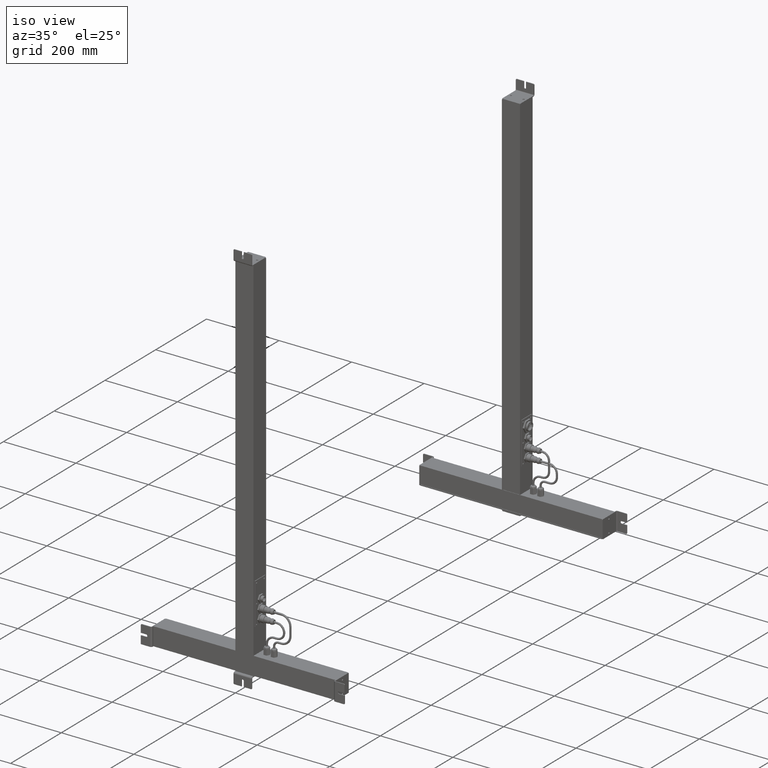
[diagram: clean part render]
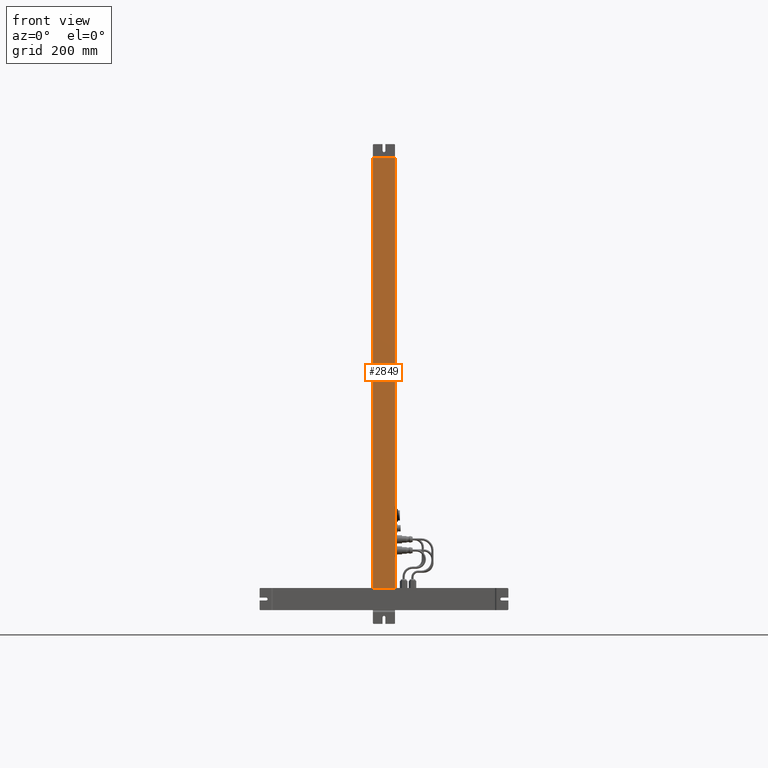
[diagram: tour spotlight — one face highlighted and labeled with its STEP entity id]
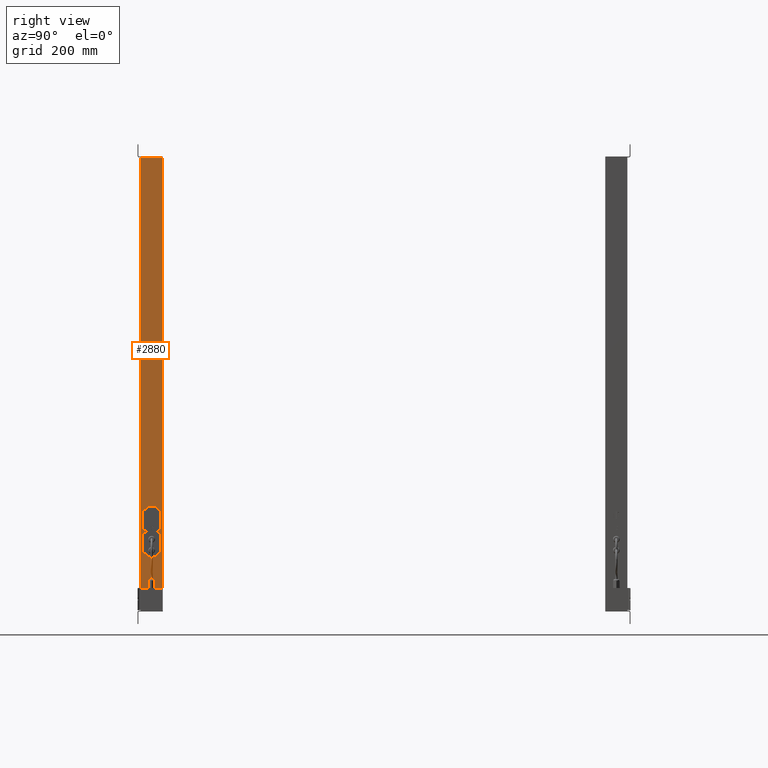
[diagram: tour spotlight — one face highlighted and labeled with its STEP entity id]
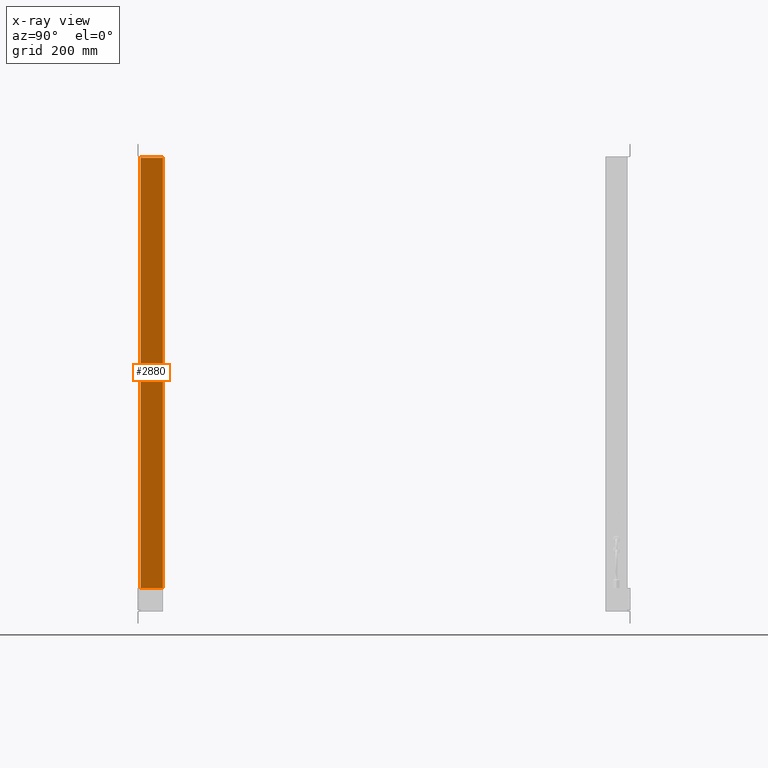
[diagram: x-ray of the same camera — body ghosted, this tour face saturated]
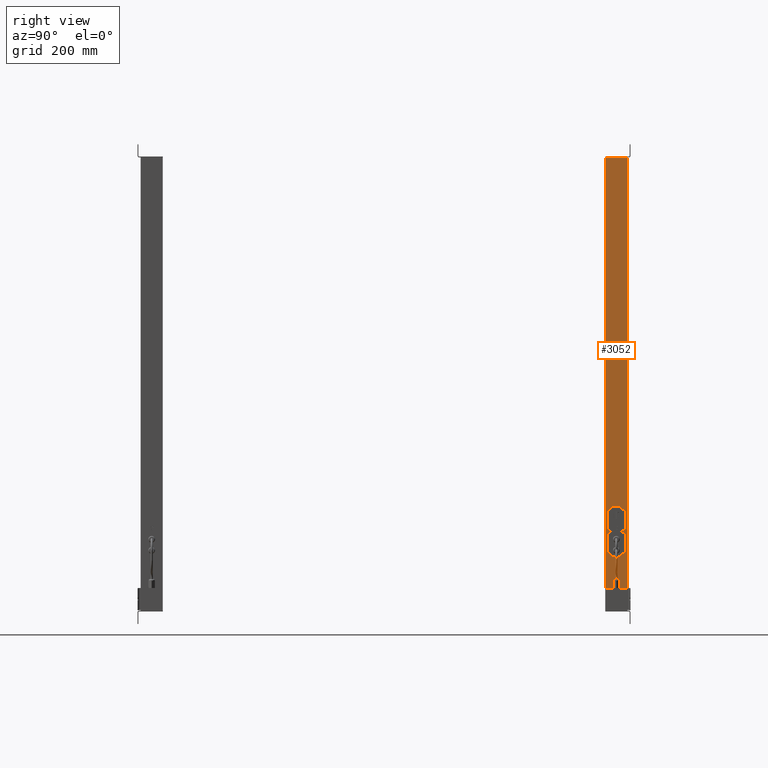
[diagram: tour spotlight — one face highlighted and labeled with its STEP entity id]
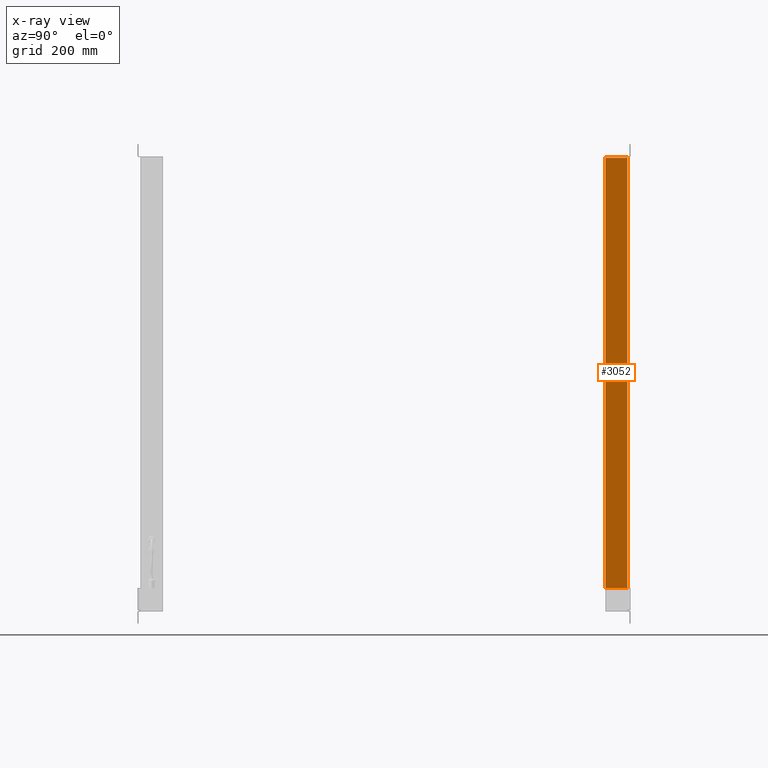
[diagram: x-ray of the same camera — body ghosted, this tour face saturated]
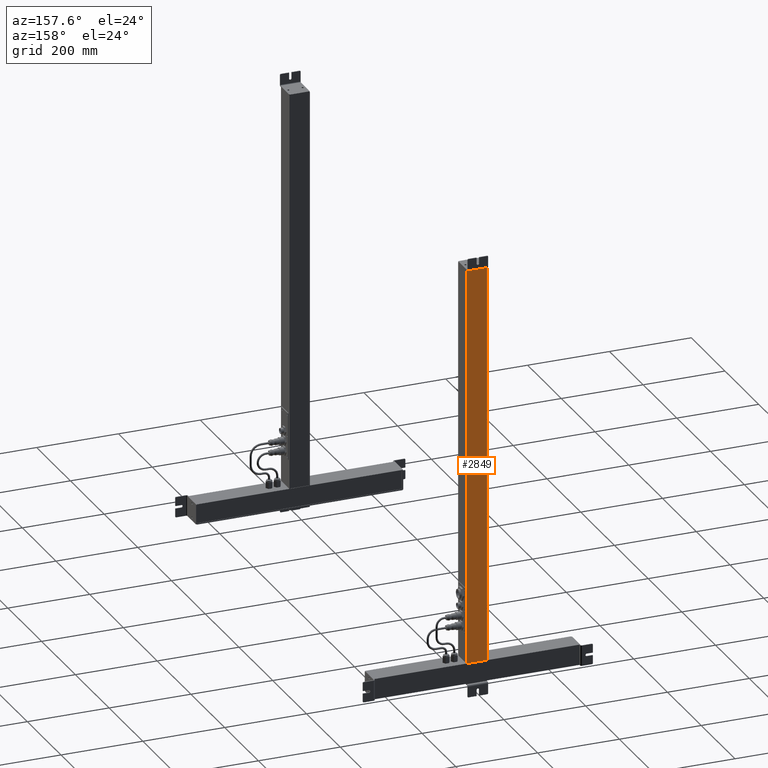
[diagram: tour spotlight — one face highlighted and labeled with its STEP entity id]
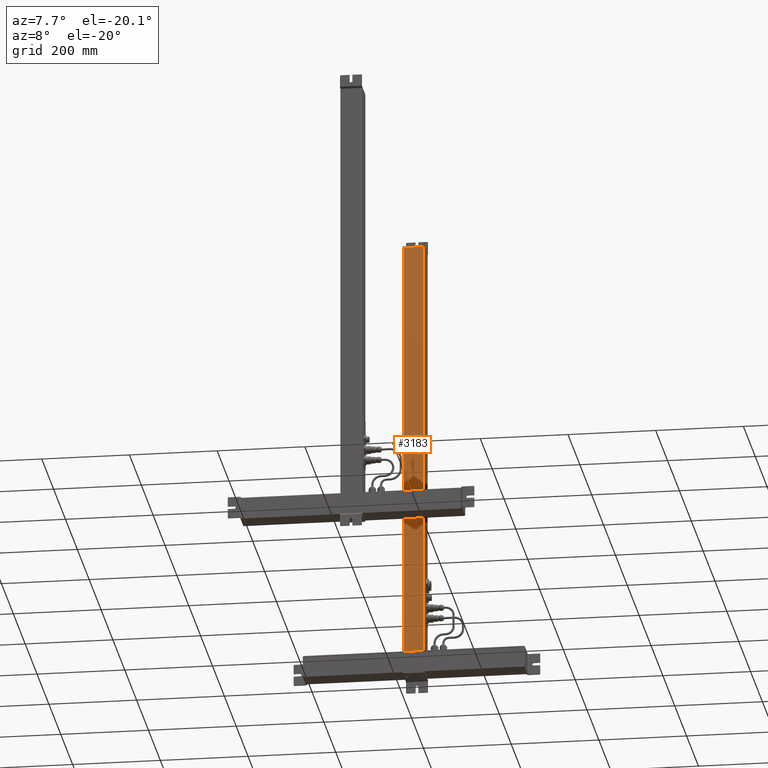
[diagram: tour spotlight — one face highlighted and labeled with its STEP entity id]
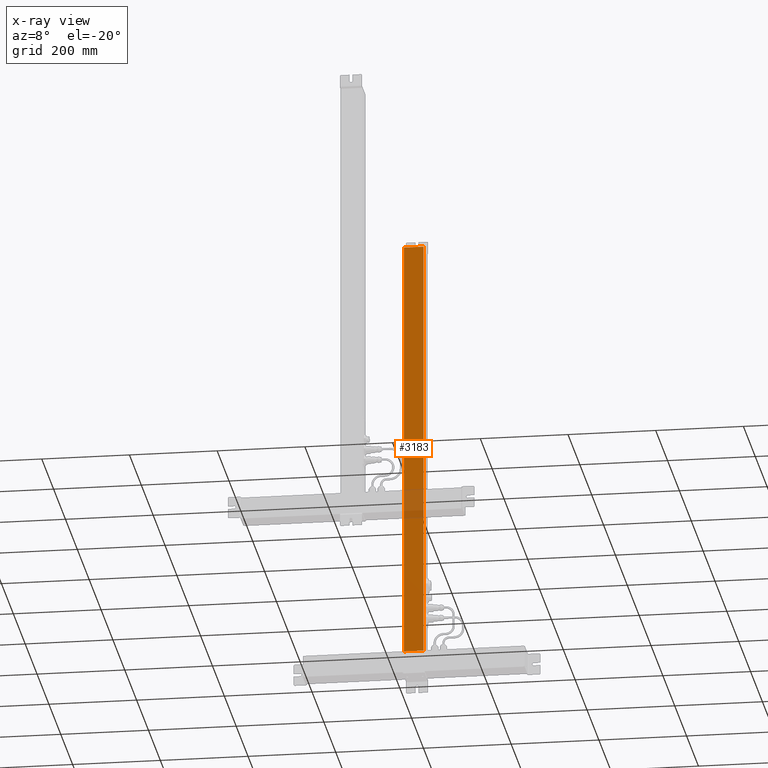
[diagram: x-ray of the same camera — body ghosted, this tour face saturated]
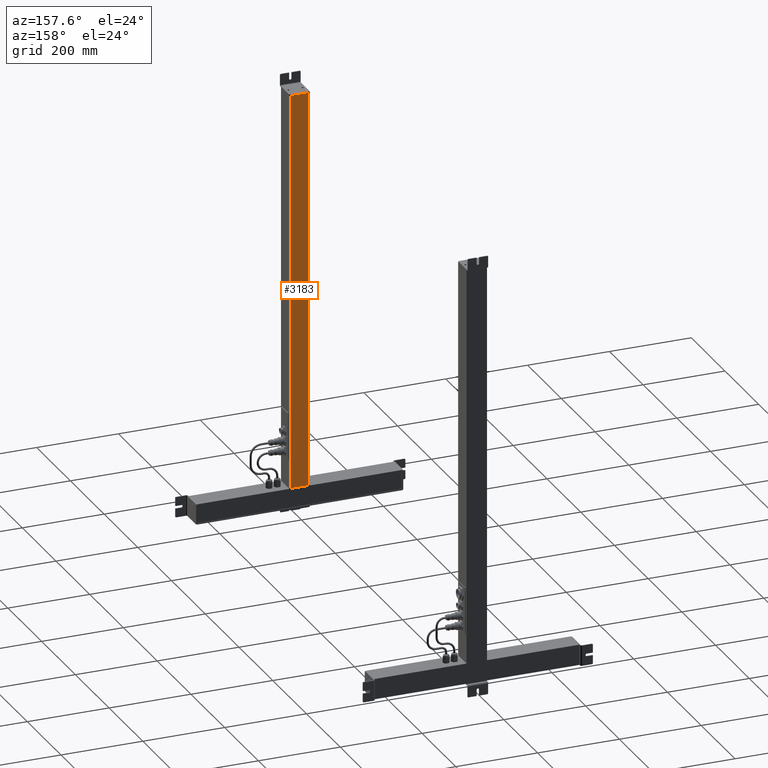
[diagram: tour spotlight — one face highlighted and labeled with its STEP entity id]
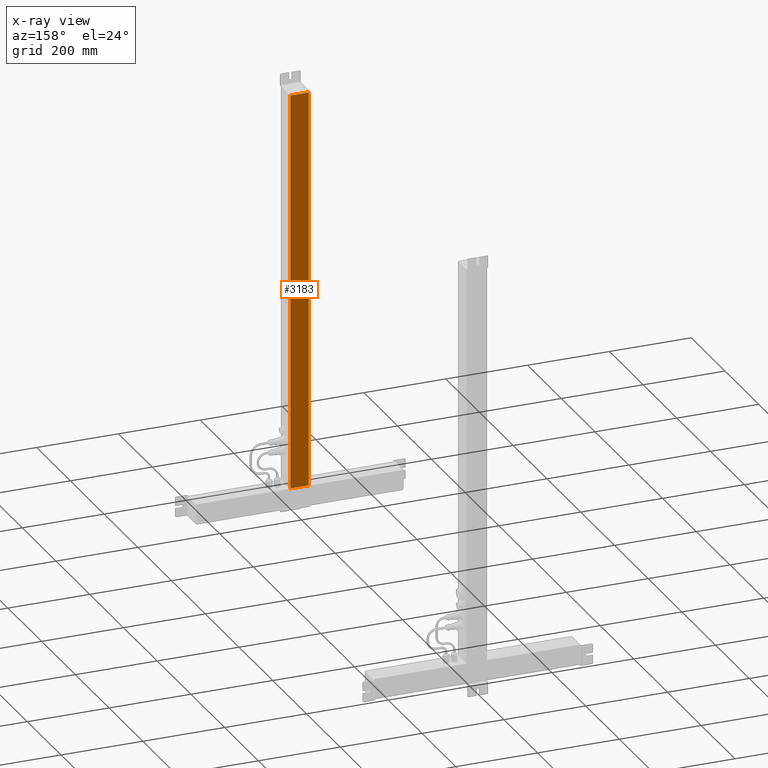
[diagram: x-ray of the same camera — body ghosted, this tour face saturated]
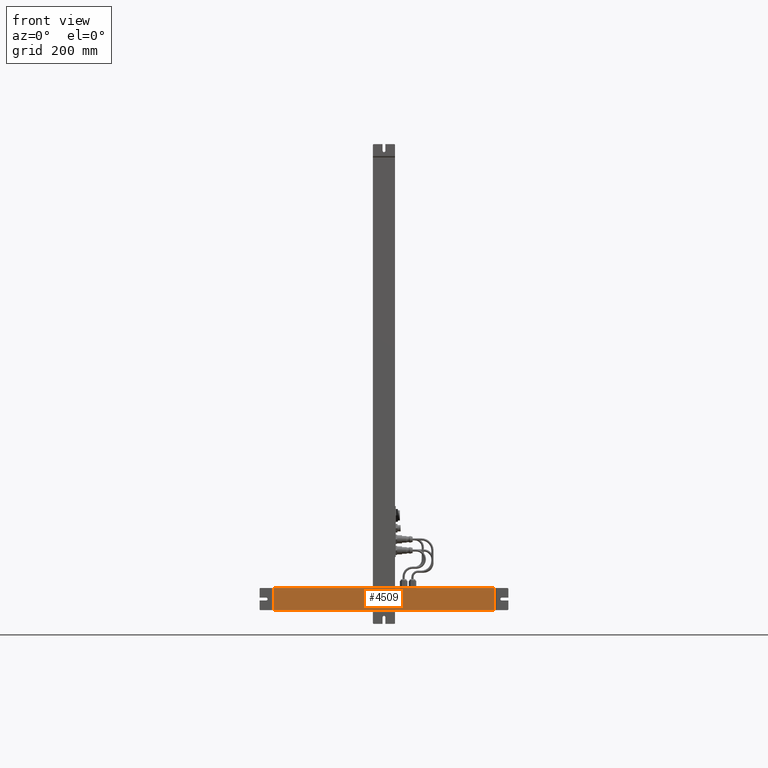
[diagram: tour spotlight — one face highlighted and labeled with its STEP entity id]
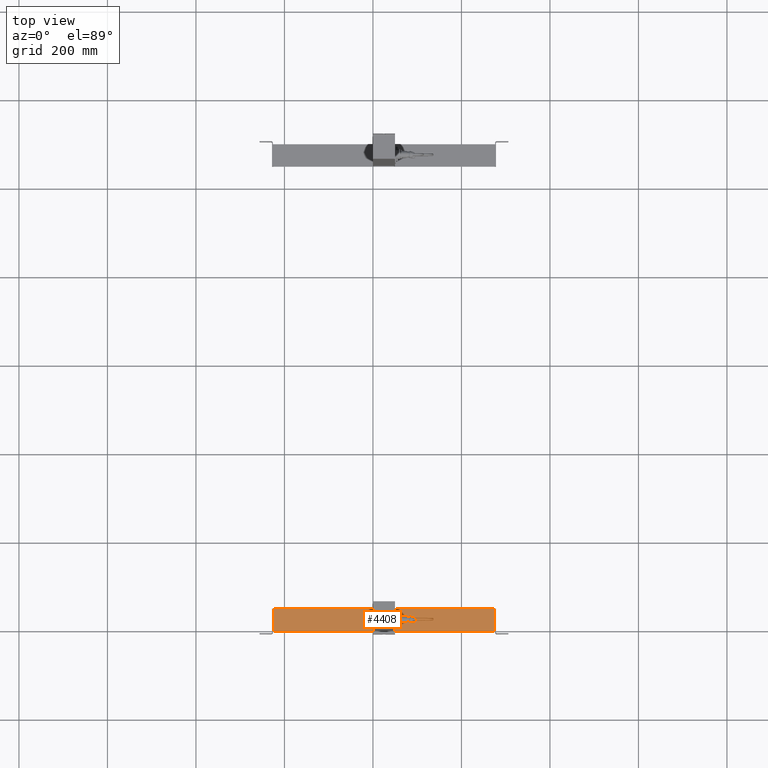
[diagram: tour spotlight — one face highlighted and labeled with its STEP entity id]
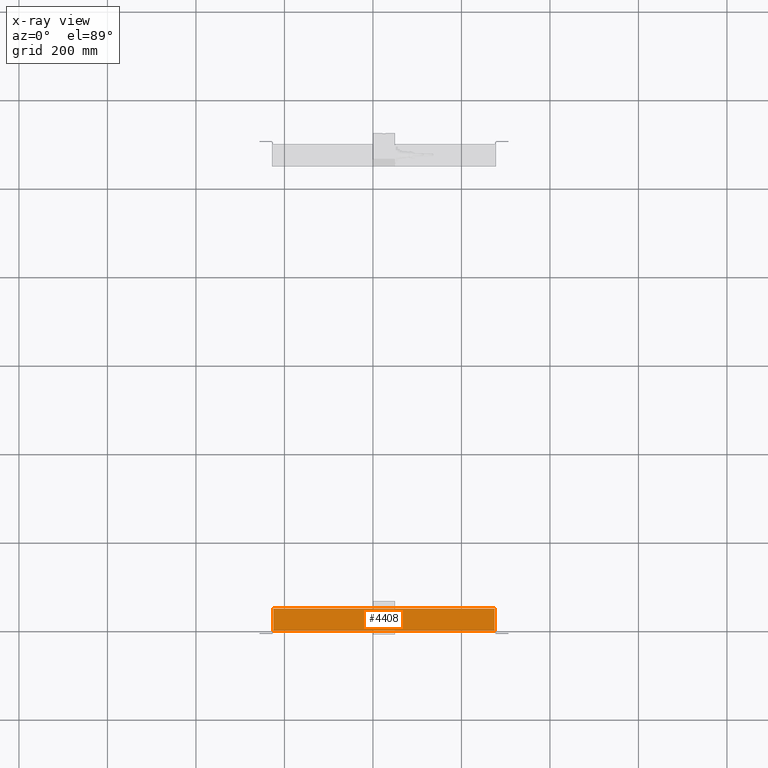
[diagram: x-ray of the same camera — body ghosted, this tour face saturated]
A machine part: a face-by-face anatomy tour. The part has 767 B-rep faces; the first image is the clean iso view, then the 8 largest visible faces are spotlighted one at a time (largest first), each with its STEP entity span.

Face 1 — front view, entity #2849. In plain terms, the highlighted planar face has unit normal (0, -1, 0).
Definition (entity closure, byte-faithful):
#2810=CARTESIAN_POINT('Axis2P3D Location',(0.,0.,0.)) ;
#2815=CARTESIAN_POINT('Line Origine',(0.,0.,486.)) ;
#2819=CARTESIAN_POINT('Vertex',(0.,0.,0.)) ;
#2821=CARTESIAN_POINT('Vertex',(0.,0.,972.)) ;
#2824=CARTESIAN_POINT('Line Origine',(25.,0.,0.)) ;
#2828=CARTESIAN_POINT('Vertex',(50.,0.,0.)) ;
#2831=CARTESIAN_POINT('Line Origine',(50.,0.,486.)) ;
#2835=CARTESIAN_POINT('Vertex',(50.,0.,972.)) ;
#2838=CARTESIAN_POINT('Line Origine',(25.,0.,972.)) ;
#2811=DIRECTION('Axis2P3D Direction',(0.,-1.,0.)) ;
#2812=DIRECTION('Axis2P3D XDirection',(1.,0.,0.)) ;
#2816=DIRECTION('Vector Direction',(0.,0.,1.)) ;
#2825=DIRECTION('Vector Direction',(1.,0.,0.)) ;
#2832=DIRECTION('Vector Direction',(0.,0.,1.)) ;
#2839=DIRECTION('Vector Direction',(1.,0.,0.)) ;
#2813=AXIS2_PLACEMENT_3D('Plane Axis2P3D',#2810,#2811,#2812) ;
#2844=ORIENTED_EDGE('',*,*,#2823,.F.) ;
#2845=ORIENTED_EDGE('',*,*,#2830,.T.) ;
#2846=ORIENTED_EDGE('',*,*,#2837,.T.) ;
#2847=ORIENTED_EDGE('',*,*,#2842,.F.) ;
#2817=VECTOR('Line Direction',#2816,1.) ;
#2826=VECTOR('Line Direction',#2825,1.) ;
#2833=VECTOR('Line Direction',#2832,1.) ;
#2840=VECTOR('Line Direction',#2839,1.) ;
#2849=ADVANCED_FACE('PartBody',(#2848),#2814,.T.) ;
#2823=EDGE_CURVE('',#2820,#2822,#2818,.T.) ;
#2830=EDGE_CURVE('',#2820,#2829,#2827,.T.) ;
#2837=EDGE_CURVE('',#2829,#2836,#2834,.T.) ;
#2842=EDGE_CURVE('',#2822,#2836,#2841,.T.) ;
#2843=EDGE_LOOP('',(#2844,#2845,#2846,#2847)) ;
#2848=FACE_OUTER_BOUND('',#2843,.T.) ;
#2818=LINE('Line',#2815,#2817) ;
#2827=LINE('Line',#2824,#2826) ;
#2834=LINE('Line',#2831,#2833) ;
#2841=LINE('Line',#2838,#2840) ;
#2814=PLANE('Plane',#2813) ;
#2820=VERTEX_POINT('',#2819) ;
#2822=VERTEX_POINT('',#2821) ;
#2829=VERTEX_POINT('',#2828) ;
#2836=VERTEX_POINT('',#2835) ;

Face 2 — right view, entity #2880. An x-ray twin of the same camera follows (body ghosted, this face saturated) — the face is partly hidden behind the body. In plain terms, the highlighted planar face has unit normal (1, 0, 0).
Definition (entity closure, byte-faithful):
#2828=CARTESIAN_POINT('Vertex',(50.,0.,0.)) ;
#2831=CARTESIAN_POINT('Line Origine',(50.,0.,486.)) ;
#2835=CARTESIAN_POINT('Vertex',(50.,0.,972.)) ;
#2850=CARTESIAN_POINT('Axis2P3D Location',(50.,2.90282621546E-015,0.)) ;
#2855=CARTESIAN_POINT('Line Origine',(50.,25.,0.)) ;
#2859=CARTESIAN_POINT('Vertex',(50.,50.,0.)) ;
#2862=CARTESIAN_POINT('Line Origine',(50.,50.,486.)) ;
#2866=CARTESIAN_POINT('Vertex',(50.,50.,972.)) ;
#2869=CARTESIAN_POINT('Line Origine',(50.,25.,972.)) ;
#2832=DIRECTION('Vector Direction',(0.,0.,1.)) ;
#2851=DIRECTION('Axis2P3D Direction',(1.,0.,0.)) ;
#2852=DIRECTION('Axis2P3D XDirection',(0.,1.,0.)) ;
#2856=DIRECTION('Vector Direction',(0.,1.,0.)) ;
#2863=DIRECTION('Vector Direction',(0.,0.,1.)) ;
#2870=DIRECTION('Vector Direction',(0.,1.,0.)) ;
#2853=AXIS2_PLACEMENT_3D('Plane Axis2P3D',#2850,#2851,#2852) ;
#2875=ORIENTED_EDGE('',*,*,#2837,.F.) ;
#2876=ORIENTED_EDGE('',*,*,#2861,.T.) ;
#2877=ORIENTED_EDGE('',*,*,#2868,.T.) ;
#2878=ORIENTED_EDGE('',*,*,#2873,.F.) ;
#2833=VECTOR('Line Direction',#2832,1.) ;
#2857=VECTOR('Line Direction',#2856,1.) ;
#2864=VECTOR('Line Direction',#2863,1.) ;
#2871=VECTOR('Line Direction',#2870,1.) ;
#2880=ADVANCED_FACE('PartBody',(#2879),#2854,.T.) ;
#2837=EDGE_CURVE('',#2829,#2836,#2834,.T.) ;
#2861=EDGE_CURVE('',#2829,#2860,#2858,.T.) ;
#2868=EDGE_CURVE('',#2860,#2867,#2865,.T.) ;
#2873=EDGE_CURVE('',#2836,#2867,#2872,.T.) ;
#2874=EDGE_LOOP('',(#2875,#2876,#2877,#2878)) ;
#2879=FACE_OUTER_BOUND('',#2874,.T.) ;
#2834=LINE('Line',#2831,#2833) ;
#2858=LINE('Line',#2855,#2857) ;
#2865=LINE('Line',#2862,#2864) ;
#2872=LINE('Line',#2869,#2871) ;
#2854=PLANE('Plane',#2853) ;
#2829=VERTEX_POINT('',#2828) ;
#2836=VERTEX_POINT('',#2835) ;
#2860=VERTEX_POINT('',#2859) ;
#2867=VERTEX_POINT('',#2866) ;

Face 3 — right view, entity #3052. An x-ray twin of the same camera follows (body ghosted, this face saturated) — the face is partly hidden behind the body. In plain terms, the highlighted planar face has unit normal (1, 0, 0).
Definition (entity closure, byte-faithful):
#2815=CARTESIAN_POINT('Line Origine',(0.,0.,486.)) ;
#2819=CARTESIAN_POINT('Vertex',(0.,0.,0.)) ;
#2821=CARTESIAN_POINT('Vertex',(0.,0.,972.)) ;
#3009=CARTESIAN_POINT('Vertex',(9.32587340685E-015,50.,0.)) ;
#3012=CARTESIAN_POINT('Line Origine',(7.1054273576E-015,50.,486.)) ;
#3016=CARTESIAN_POINT('Vertex',(9.32587340685E-015,50.,972.)) ;
#3031=CARTESIAN_POINT('Axis2P3D Location',(0.,50.,0.)) ;
#3036=CARTESIAN_POINT('Line Origine',(0.,25.,0.)) ;
#3041=CARTESIAN_POINT('Line Origine',(0.,25.,972.)) ;
#2816=DIRECTION('Vector Direction',(0.,0.,1.)) ;
#3013=DIRECTION('Vector Direction',(0.,0.,1.)) ;
#3032=DIRECTION('Axis2P3D Direction',(-1.,0.,0.)) ;
#3033=DIRECTION('Axis2P3D XDirection',(0.,-1.,0.)) ;
#3037=DIRECTION('Vector Direction',(0.,-1.,0.)) ;
#3042=DIRECTION('Vector Direction',(0.,-1.,0.)) ;
#3034=AXIS2_PLACEMENT_3D('Plane Axis2P3D',#3031,#3032,#3033) ;
#3047=ORIENTED_EDGE('',*,*,#3018,.F.) ;
#3048=ORIENTED_EDGE('',*,*,#3040,.T.) ;
#3049=ORIENTED_EDGE('',*,*,#2823,.T.) ;
#3050=ORIENTED_EDGE('',*,*,#3045,.F.) ;
#2817=VECTOR('Line Direction',#2816,1.) ;
#3014=VECTOR('Line Direction',#3013,1.) ;
#3038=VECTOR('Line Direction',#3037,1.) ;
#3043=VECTOR('Line Direction',#3042,1.) ;
#3052=ADVANCED_FACE('PartBody',(#3051),#3035,.T.) ;
#2823=EDGE_CURVE('',#2820,#2822,#2818,.T.) ;
#3018=EDGE_CURVE('',#3010,#3017,#3015,.T.) ;
#3040=EDGE_CURVE('',#3010,#2820,#3039,.T.) ;
#3045=EDGE_CURVE('',#3017,#2822,#3044,.T.) ;
#3046=EDGE_LOOP('',(#3047,#3048,#3049,#3050)) ;
#3051=FACE_OUTER_BOUND('',#3046,.T.) ;
#2818=LINE('Line',#2815,#2817) ;
#3015=LINE('Line',#3012,#3014) ;
#3039=LINE('Line',#3036,#3038) ;
#3044=LINE('Line',#3041,#3043) ;
#3035=PLANE('Plane',#3034) ;
#2820=VERTEX_POINT('',#2819) ;
#2822=VERTEX_POINT('',#2821) ;
#3010=VERTEX_POINT('',#3009) ;
#3017=VERTEX_POINT('',#3016) ;

Face 4 — auxiliary view, entity #2849. In plain terms, the highlighted planar face has unit normal (0, 1, 0).
Definition (entity closure, byte-faithful):
#2810=CARTESIAN_POINT('Axis2P3D Location',(0.,0.,0.)) ;
#2815=CARTESIAN_POINT('Line Origine',(0.,0.,486.)) ;
#2819=CARTESIAN_POINT('Vertex',(0.,0.,0.)) ;
#2821=CARTESIAN_POINT('Vertex',(0.,0.,972.)) ;
#2824=CARTESIAN_POINT('Line Origine',(25.,0.,0.)) ;
#2828=CARTESIAN_POINT('Vertex',(50.,0.,0.)) ;
#2831=CARTESIAN_POINT('Line Origine',(50.,0.,486.)) ;
#2835=CARTESIAN_POINT('Vertex',(50.,0.,972.)) ;
#2838=CARTESIAN_POINT('Line Origine',(25.,0.,972.)) ;
#2811=DIRECTION('Axis2P3D Direction',(0.,-1.,0.)) ;
#2812=DIRECTION('Axis2P3D XDirection',(1.,0.,0.)) ;
#2816=DIRECTION('Vector Direction',(0.,0.,1.)) ;
#2825=DIRECTION('Vector Direction',(1.,0.,0.)) ;
#2832=DIRECTION('Vector Direction',(0.,0.,1.)) ;
#2839=DIRECTION('Vector Direction',(1.,0.,0.)) ;
#2813=AXIS2_PLACEMENT_3D('Plane Axis2P3D',#2810,#2811,#2812) ;
#2844=ORIENTED_EDGE('',*,*,#2823,.F.) ;
#2845=ORIENTED_EDGE('',*,*,#2830,.T.) ;
#2846=ORIENTED_EDGE('',*,*,#2837,.T.) ;
#2847=ORIENTED_EDGE('',*,*,#2842,.F.) ;
#2817=VECTOR('Line Direction',#2816,1.) ;
#2826=VECTOR('Line Direction',#2825,1.) ;
#2833=VECTOR('Line Direction',#2832,1.) ;
#2840=VECTOR('Line Direction',#2839,1.) ;
#2849=ADVANCED_FACE('PartBody',(#2848),#2814,.T.) ;
#2823=EDGE_CURVE('',#2820,#2822,#2818,.T.) ;
#2830=EDGE_CURVE('',#2820,#2829,#2827,.T.) ;
#2837=EDGE_CURVE('',#2829,#2836,#2834,.T.) ;
#2842=EDGE_CURVE('',#2822,#2836,#2841,.T.) ;
#2843=EDGE_LOOP('',(#2844,#2845,#2846,#2847)) ;
#2848=FACE_OUTER_BOUND('',#2843,.T.) ;
#2818=LINE('Line',#2815,#2817) ;
#2827=LINE('Line',#2824,#2826) ;
#2834=LINE('Line',#2831,#2833) ;
#2841=LINE('Line',#2838,#2840) ;
#2814=PLANE('Plane',#2813) ;
#2820=VERTEX_POINT('',#2819) ;
#2822=VERTEX_POINT('',#2821) ;
#2829=VERTEX_POINT('',#2828) ;
#2836=VERTEX_POINT('',#2835) ;

Face 5 — auxiliary view, entity #3183. An x-ray twin of the same camera follows (body ghosted, this face saturated) — the face is partly hidden behind the body. In plain terms, the highlighted planar face has unit normal (0, -1, 0).
Definition (entity closure, byte-faithful):
#3100=CARTESIAN_POINT('Vertex',(2.5,49.,0.)) ;
#3103=CARTESIAN_POINT('Line Origine',(25.,49.,0.)) ;
#3107=CARTESIAN_POINT('Vertex',(47.5,49.,0.)) ;
#3140=CARTESIAN_POINT('Vertex',(2.5,49.,972.)) ;
#3143=CARTESIAN_POINT('Line Origine',(2.5,49.,486.)) ;
#3160=CARTESIAN_POINT('Axis2P3D Location',(47.5,49.,0.)) ;
#3165=CARTESIAN_POINT('Line Origine',(47.5,49.,486.)) ;
#3169=CARTESIAN_POINT('Vertex',(47.5,49.,972.)) ;
#3172=CARTESIAN_POINT('Line Origine',(25.,49.,972.)) ;
#3104=DIRECTION('Vector Direction',(-1.,0.,0.)) ;
#3144=DIRECTION('Vector Direction',(0.,0.,1.)) ;
#3161=DIRECTION('Axis2P3D Direction',(0.,1.,-0.)) ;
#3162=DIRECTION('Axis2P3D XDirection',(-1.,0.,0.)) ;
#3166=DIRECTION('Vector Direction',(0.,0.,1.)) ;
#3173=DIRECTION('Vector Direction',(-1.,0.,0.)) ;
#3163=AXIS2_PLACEMENT_3D('Plane Axis2P3D',#3160,#3161,#3162) ;
#3178=ORIENTED_EDGE('',*,*,#3171,.F.) ;
#3179=ORIENTED_EDGE('',*,*,#3109,.F.) ;
#3180=ORIENTED_EDGE('',*,*,#3147,.T.) ;
#3181=ORIENTED_EDGE('',*,*,#3176,.F.) ;
#3105=VECTOR('Line Direction',#3104,1.) ;
#3145=VECTOR('Line Direction',#3144,1.) ;
#3167=VECTOR('Line Direction',#3166,1.) ;
#3174=VECTOR('Line Direction',#3173,1.) ;
#3183=ADVANCED_FACE('Body.2',(#3182),#3164,.T.) ;
#3109=EDGE_CURVE('',#3101,#3108,#3106,.F.) ;
#3147=EDGE_CURVE('',#3101,#3141,#3146,.T.) ;
#3171=EDGE_CURVE('',#3108,#3170,#3168,.T.) ;
#3176=EDGE_CURVE('',#3170,#3141,#3175,.T.) ;
#3177=EDGE_LOOP('',(#3178,#3179,#3180,#3181)) ;
#3182=FACE_OUTER_BOUND('',#3177,.T.) ;
#3106=LINE('Line',#3103,#3105) ;
#3146=LINE('Line',#3143,#3145) ;
#3168=LINE('Line',#3165,#3167) ;
#3175=LINE('Line',#3172,#3174) ;
#3164=PLANE('Plane',#3163) ;
#3101=VERTEX_POINT('',#3100) ;
#3108=VERTEX_POINT('',#3107) ;
#3141=VERTEX_POINT('',#3140) ;
#3170=VERTEX_POINT('',#3169) ;

Face 6 — auxiliary view, entity #3183. An x-ray twin of the same camera follows (body ghosted, this face saturated) — the face is partly hidden behind the body. In plain terms, the highlighted planar face has unit normal (0, 1, 0).
Definition (entity closure, byte-faithful):
#3100=CARTESIAN_POINT('Vertex',(2.5,49.,0.)) ;
#3103=CARTESIAN_POINT('Line Origine',(25.,49.,0.)) ;
#3107=CARTESIAN_POINT('Vertex',(47.5,49.,0.)) ;
#3140=CARTESIAN_POINT('Vertex',(2.5,49.,972.)) ;
#3143=CARTESIAN_POINT('Line Origine',(2.5,49.,486.)) ;
#3160=CARTESIAN_POINT('Axis2P3D Location',(47.5,49.,0.)) ;
#3165=CARTESIAN_POINT('Line Origine',(47.5,49.,486.)) ;
#3169=CARTESIAN_POINT('Vertex',(47.5,49.,972.)) ;
#3172=CARTESIAN_POINT('Line Origine',(25.,49.,972.)) ;
#3104=DIRECTION('Vector Direction',(-1.,0.,0.)) ;
#3144=DIRECTION('Vector Direction',(0.,0.,1.)) ;
#3161=DIRECTION('Axis2P3D Direction',(0.,1.,-0.)) ;
#3162=DIRECTION('Axis2P3D XDirection',(-1.,0.,0.)) ;
#3166=DIRECTION('Vector Direction',(0.,0.,1.)) ;
#3173=DIRECTION('Vector Direction',(-1.,0.,0.)) ;
#3163=AXIS2_PLACEMENT_3D('Plane Axis2P3D',#3160,#3161,#3162) ;
#3178=ORIENTED_EDGE('',*,*,#3171,.F.) ;
#3179=ORIENTED_EDGE('',*,*,#3109,.F.) ;
#3180=ORIENTED_EDGE('',*,*,#3147,.T.) ;
#3181=ORIENTED_EDGE('',*,*,#3176,.F.) ;
#3105=VECTOR('Line Direction',#3104,1.) ;
#3145=VECTOR('Line Direction',#3144,1.) ;
#3167=VECTOR('Line Direction',#3166,1.) ;
#3174=VECTOR('Line Direction',#3173,1.) ;
#3183=ADVANCED_FACE('Body.2',(#3182),#3164,.T.) ;
#3109=EDGE_CURVE('',#3101,#3108,#3106,.F.) ;
#3147=EDGE_CURVE('',#3101,#3141,#3146,.T.) ;
#3171=EDGE_CURVE('',#3108,#3170,#3168,.T.) ;
#3176=EDGE_CURVE('',#3170,#3141,#3175,.T.) ;
#3177=EDGE_LOOP('',(#3178,#3179,#3180,#3181)) ;
#3182=FACE_OUTER_BOUND('',#3177,.T.) ;
#3106=LINE('Line',#3103,#3105) ;
#3146=LINE('Line',#3143,#3145) ;
#3168=LINE('Line',#3165,#3167) ;
#3175=LINE('Line',#3172,#3174) ;
#3164=PLANE('Plane',#3163) ;
#3101=VERTEX_POINT('',#3100) ;
#3108=VERTEX_POINT('',#3107) ;
#3141=VERTEX_POINT('',#3140) ;
#3170=VERTEX_POINT('',#3169) ;

Face 7 — front view, entity #4509. In plain terms, the highlighted planar face has unit normal (0, -1, 0).
Definition (entity closure, byte-faithful):
#4047=CARTESIAN_POINT('Line Origine',(50.,2.90282621546E-015,250.)) ;
#4051=CARTESIAN_POINT('Vertex',(50.,0.,0.)) ;
#4053=CARTESIAN_POINT('Vertex',(50.,0.,500.)) ;
#4177=CARTESIAN_POINT('Vertex',(0.,0.,0.)) ;
#4204=CARTESIAN_POINT('Line Origine',(25.,0.,0.)) ;
#4382=CARTESIAN_POINT('Line Origine',(0.,0.,250.)) ;
#4386=CARTESIAN_POINT('Vertex',(0.,0.,500.)) ;
#4482=CARTESIAN_POINT('Line Origine',(25.,0.,500.)) ;
#4498=CARTESIAN_POINT('Axis2P3D Location',(0.,0.,0.)) ;
#4048=DIRECTION('Vector Direction',(0.,0.,1.)) ;
#4205=DIRECTION('Vector Direction',(1.,0.,0.)) ;
#4383=DIRECTION('Vector Direction',(0.,0.,1.)) ;
#4483=DIRECTION('Vector Direction',(1.,0.,0.)) ;
#4499=DIRECTION('Axis2P3D Direction',(0.,-1.,0.)) ;
#4500=DIRECTION('Axis2P3D XDirection',(1.,0.,0.)) ;
#4501=AXIS2_PLACEMENT_3D('Plane Axis2P3D',#4498,#4499,#4500) ;
#4504=ORIENTED_EDGE('',*,*,#4388,.F.) ;
#4505=ORIENTED_EDGE('',*,*,#4208,.T.) ;
#4506=ORIENTED_EDGE('',*,*,#4055,.T.) ;
#4507=ORIENTED_EDGE('',*,*,#4486,.F.) ;
#4049=VECTOR('Line Direction',#4048,1.) ;
#4206=VECTOR('Line Direction',#4205,1.) ;
#4384=VECTOR('Line Direction',#4383,1.) ;
#4484=VECTOR('Line Direction',#4483,1.) ;
#4509=ADVANCED_FACE('PartBody',(#4508),#4502,.T.) ;
#4055=EDGE_CURVE('',#4052,#4054,#4050,.T.) ;
#4208=EDGE_CURVE('',#4178,#4052,#4207,.T.) ;
#4388=EDGE_CURVE('',#4178,#4387,#4385,.T.) ;
#4486=EDGE_CURVE('',#4387,#4054,#4485,.T.) ;
#4503=EDGE_LOOP('',(#4504,#4505,#4506,#4507)) ;
#4508=FACE_OUTER_BOUND('',#4503,.T.) ;
#4050=LINE('Line',#4047,#4049) ;
#4207=LINE('Line',#4204,#4206) ;
#4385=LINE('Line',#4382,#4384) ;
#4485=LINE('Line',#4482,#4484) ;
#4502=PLANE('Plane',#4501) ;
#4052=VERTEX_POINT('',#4051) ;
#4054=VERTEX_POINT('',#4053) ;
#4178=VERTEX_POINT('',#4177) ;
#4387=VERTEX_POINT('',#4386) ;

Face 8 — top view, entity #4408. An x-ray twin of the same camera follows (body ghosted, this face saturated) — the face is partly hidden behind the body. In plain terms, the highlighted planar face has unit normal (-0, 0, 1).
Definition (entity closure, byte-faithful):
#4171=CARTESIAN_POINT('Line Origine',(0.,25.,0.)) ;
#4175=CARTESIAN_POINT('Vertex',(9.32587340685E-015,50.,0.)) ;
#4177=CARTESIAN_POINT('Vertex',(0.,0.,0.)) ;
#4272=CARTESIAN_POINT('Vertex',(0.,27.5,267.44)) ;
#4275=CARTESIAN_POINT('Axis2P3D Location',(0.,25.,267.44)) ;
#4279=CARTESIAN_POINT('Vertex',(0.,22.5,267.44)) ;
#4301=CARTESIAN_POINT('Axis2P3D Location',(0.,25.,267.44)) ;
#4324=CARTESIAN_POINT('Vertex',(0.,27.4348620305,232.56)) ;
#4327=CARTESIAN_POINT('Axis2P3D Location',(0.,25.,232.56)) ;
#4331=CARTESIAN_POINT('Vertex',(0.,22.5651379695,232.56)) ;
#4353=CARTESIAN_POINT('Axis2P3D Location',(0.,25.,232.56)) ;
#4370=CARTESIAN_POINT('Axis2P3D Location',(0.,50.,0.)) ;
#4375=CARTESIAN_POINT('Line Origine',(0.,50.,250.)) ;
#4379=CARTESIAN_POINT('Vertex',(9.32587340685E-015,50.,500.)) ;
#4382=CARTESIAN_POINT('Line Origine',(0.,0.,250.)) ;
#4386=CARTESIAN_POINT('Vertex',(0.,0.,500.)) ;
#4389=CARTESIAN_POINT('Line Origine',(0.,25.,500.)) ;
#4172=DIRECTION('Vector Direction',(0.,-1.,0.)) ;
#4276=DIRECTION('Axis2P3D Direction',(1.,0.,0.)) ;
#4302=DIRECTION('Axis2P3D Direction',(1.,0.,0.)) ;
#4328=DIRECTION('Axis2P3D Direction',(1.,0.,0.)) ;
#4354=DIRECTION('Axis2P3D Direction',(1.,0.,0.)) ;
#4371=DIRECTION('Axis2P3D Direction',(-1.,0.,0.)) ;
#4372=DIRECTION('Axis2P3D XDirection',(0.,-1.,0.)) ;
#4376=DIRECTION('Vector Direction',(0.,0.,1.)) ;
#4383=DIRECTION('Vector Direction',(0.,0.,1.)) ;
#4390=DIRECTION('Vector Direction',(0.,-1.,0.)) ;
#4277=AXIS2_PLACEMENT_3D('Circle Axis2P3D',#4275,#4276,$) ;
#4303=AXIS2_PLACEMENT_3D('Circle Axis2P3D',#4301,#4302,$) ;
#4329=AXIS2_PLACEMENT_3D('Circle Axis2P3D',#4327,#4328,$) ;
#4355=AXIS2_PLACEMENT_3D('Circle Axis2P3D',#4353,#4354,$) ;
#4373=AXIS2_PLACEMENT_3D('Plane Axis2P3D',#4370,#4371,#4372) ;
#4395=ORIENTED_EDGE('',*,*,#4381,.F.) ;
#4396=ORIENTED_EDGE('',*,*,#4179,.T.) ;
#4397=ORIENTED_EDGE('',*,*,#4388,.T.) ;
#4398=ORIENTED_EDGE('',*,*,#4393,.F.) ;
#4401=ORIENTED_EDGE('',*,*,#4357,.F.) ;
#4402=ORIENTED_EDGE('',*,*,#4333,.F.) ;
#4405=ORIENTED_EDGE('',*,*,#4305,.F.) ;
#4406=ORIENTED_EDGE('',*,*,#4281,.F.) ;
#4403=FACE_BOUND('',#4400,.T.) ;
#4407=FACE_BOUND('',#4404,.T.) ;
#4173=VECTOR('Line Direction',#4172,1.) ;
#4377=VECTOR('Line Direction',#4376,1.) ;
#4384=VECTOR('Line Direction',#4383,1.) ;
#4391=VECTOR('Line Direction',#4390,1.) ;
#4408=ADVANCED_FACE('PartBody',(#4399,#4403,#4407),#4374,.T.) ;
#4278=CIRCLE('generated circle',#4277,2.50000000001) ;
#4304=CIRCLE('generated circle',#4303,2.50000000001) ;
#4330=CIRCLE('generated circle',#4329,2.4348620305) ;
#4356=CIRCLE('generated circle',#4355,2.4348620305) ;
#4179=EDGE_CURVE('',#4176,#4178,#4174,.T.) ;
#4281=EDGE_CURVE('',#4273,#4280,#4278,.F.) ;
#4305=EDGE_CURVE('',#4280,#4273,#4304,.F.) ;
#4333=EDGE_CURVE('',#4325,#4332,#4330,.F.) ;
#4357=EDGE_CURVE('',#4332,#4325,#4356,.F.) ;
#4381=EDGE_CURVE('',#4176,#4380,#4378,.T.) ;
#4388=EDGE_CURVE('',#4178,#4387,#4385,.T.) ;
#4393=EDGE_CURVE('',#4380,#4387,#4392,.T.) ;
#4394=EDGE_LOOP('',(#4395,#4396,#4397,#4398)) ;
#4400=EDGE_LOOP('',(#4401,#4402)) ;
#4404=EDGE_LOOP('',(#4405,#4406)) ;
#4399=FACE_OUTER_BOUND('',#4394,.T.) ;
#4174=LINE('Line',#4171,#4173) ;
#4378=LINE('Line',#4375,#4377) ;
#4385=LINE('Line',#4382,#4384) ;
#4392=LINE('Line',#4389,#4391) ;
#4374=PLANE('Plane',#4373) ;
#4176=VERTEX_POINT('',#4175) ;
#4178=VERTEX_POINT('',#4177) ;
#4273=VERTEX_POINT('',#4272) ;
#4280=VERTEX_POINT('',#4279) ;
#4325=VERTEX_POINT('',#4324) ;
#4332=VERTEX_POINT('',#4331) ;
#4380=VERTEX_POINT('',#4379) ;
#4387=VERTEX_POINT('',#4386) ;